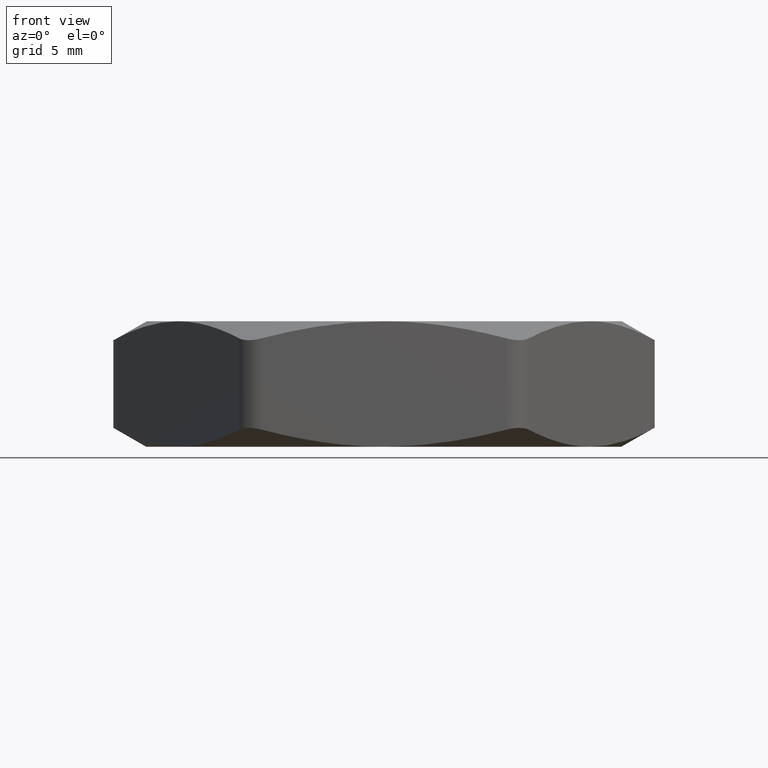
[diagram: clean part render]
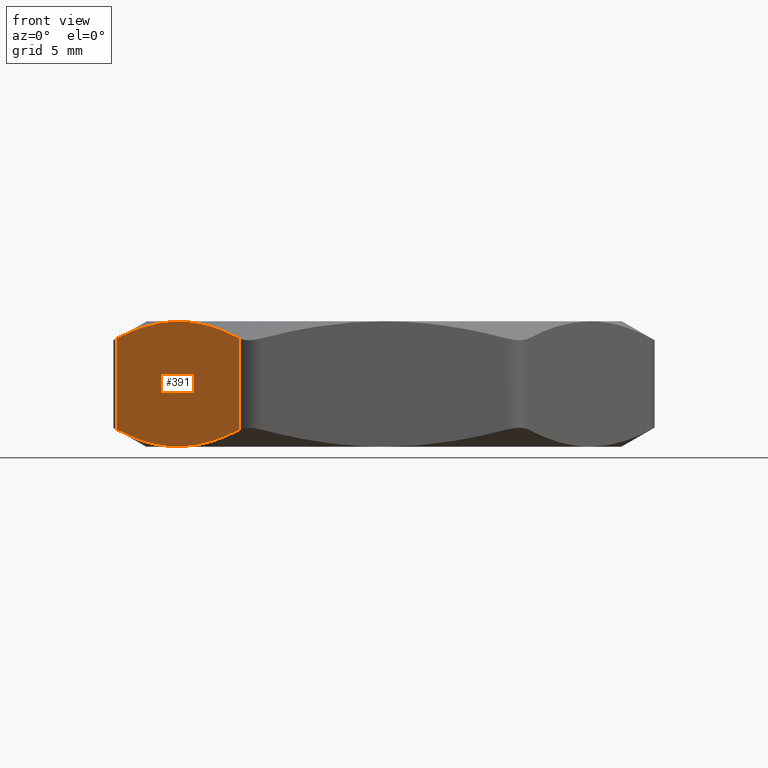
[diagram: same view with one face highlighted and labeled with its STEP entity id]
A machine part, front view. The second image highlights one B-rep face of the part: STEP entity #391.
In plain terms, the highlighted planar face has unit normal (0.866, 0.5, 0).
Its self-contained STEP definition (entity closure, byte-faithful):
#103 = EDGE_CURVE ( 'NONE', #123, #129, #1183, .T. ) ;
#123 = VERTEX_POINT ( 'NONE', #1197 ) ;
#129 = VERTEX_POINT ( 'NONE', #1184 ) ;
#382 = EDGE_CURVE ( 'NONE', #439, #410, #1484, .T. ) ;
#387 = EDGE_LOOP ( 'NONE', ( #416, #450, #392, #390, #393, #536 ) ) ;
#388 = EDGE_CURVE ( 'NONE', #389, #503, #1489, .T. ) ;
#389 = VERTEX_POINT ( 'NONE', #1488 ) ;
#390 = ORIENTED_EDGE ( 'NONE', *, *, #409, .F. ) ;
#391 = ADVANCED_FACE ( 'NONE', ( #1487 ), #1468, .F. ) ;
#392 = ORIENTED_EDGE ( 'NONE', *, *, #382, .F. ) ;
#393 = ORIENTED_EDGE ( 'NONE', *, *, #103, .T. ) ;
#409 = EDGE_CURVE ( 'NONE', #123, #439, #1517, .T. ) ;
#410 = VERTEX_POINT ( 'NONE', #1516 ) ;
#416 = ORIENTED_EDGE ( 'NONE', *, *, #388, .F. ) ;
#439 = VERTEX_POINT ( 'NONE', #1564 ) ;
#450 = ORIENTED_EDGE ( 'NONE', *, *, #560, .T. ) ;
#503 = VERTEX_POINT ( 'NONE', #1767 ) ;
#536 = ORIENTED_EDGE ( 'NONE', *, *, #537, .F. ) ;
#537 = EDGE_CURVE ( 'NONE', #503, #129, #1667, .T. ) ;
#560 = EDGE_CURVE ( 'NONE', #389, #410, #2002, .T. ) ;
#1174 = DIRECTION ( 'NONE',  ( 0.0000000000000000000, 0.0000000000000000000, -1.000000000000000000 ) ) ;
#1175 = VECTOR ( 'NONE', #1174, 39.37007874015748100 ) ;
#1182 = CARTESIAN_POINT ( 'NONE',  ( -0.5109549882328187100, -0.02499999999999983500, 0.2399999999999999900 ) ) ;
#1183 = LINE ( 'NONE', #1182, #1175 ) ;
#1184 = CARTESIAN_POINT ( 'NONE',  ( -0.5109549882328187100, -0.02499999999999989000, 0.03265852378576744600 ) ) ;
#1197 = CARTESIAN_POINT ( 'NONE',  ( -0.5109549882328113800, -0.02500000000001266100, 0.2073414762142365400 ) ) ;
#1435 = DIRECTION ( 'NONE',  ( -0.4999999999999996100, 0.8660254037844388200, 0.0000000000000000000 ) ) ;
#1453 = CARTESIAN_POINT ( 'NONE',  ( -0.3544981436934779900, -0.2959912039340434300, 0.2362998002525596200 ) ) ;
#1454 = CARTESIAN_POINT ( 'NONE',  ( -0.3741964225388601500, -0.2618727841521824600, 0.2392436842612520300 ) ) ;
#1455 = CARTESIAN_POINT ( 'NONE',  ( -0.3841432737497994000, -0.2446443324795075100, 0.2400000000000003500 ) ) ;
#1456 = CARTESIAN_POINT ( 'NONE',  ( -0.3940415587219195400, -0.2274999999999997600, 0.2399999999999999900 ) ) ;
#1465 = DIRECTION ( 'NONE',  ( 0.8660254037844388200, 0.4999999999999996100, 0.0000000000000000000 ) ) ;
#1466 = CARTESIAN_POINT ( 'NONE',  ( -0.5253887449625593800, 2.086280119793686300E-016, 0.2399999999999999900 ) ) ;
#1467 = AXIS2_PLACEMENT_3D ( 'NONE', #1466, #1465, #1435 ) ;
#1468 = PLANE ( 'NONE',  #1467 ) ;
#1470 = CARTESIAN_POINT ( 'NONE',  ( -0.3940415587219196500, -0.2274999999999998100, 0.0000000000000000000 ) ) ;
#1471 = CARTESIAN_POINT ( 'NONE',  ( -0.3741650461296590600, -0.2619271296870779900, -3.058655981187576800E-016 ) ) ;
#1472 = CARTESIAN_POINT ( 'NONE',  ( -0.3545074000024688900, -0.2959751715365804800, 0.003047286557916121000 ) ) ;
#1473 = CARTESIAN_POINT ( 'NONE',  ( -0.3155652014642630300, -0.3634250379631875400, 0.01433645842496861200 ) ) ;
#1474 = CARTESIAN_POINT ( 'NONE',  ( -0.2962786875227135800, -0.3968302600108370400, 0.02255103326593309000 ) ) ;
#1477 = CARTESIAN_POINT ( 'NONE',  ( -0.2771281292110438500, -0.4299999999999594100, 0.2073414762142448400 ) ) ;
#1478 = CARTESIAN_POINT ( 'NONE',  ( -0.2962350177360412700, -0.3969058983001091400, 0.2174259182177965000 ) ) ;
#1479 = CARTESIAN_POINT ( 'NONE',  ( -0.3154969853735114500, -0.3635431916982633200, 0.2256379058401488900 ) ) ;
#1480 = CARTESIAN_POINT ( 'NONE',  ( -0.3447080571647794200, -0.3129481312122451800, 0.2341148424957023600 ) ) ;
#1484 = B_SPLINE_CURVE_WITH_KNOTS ( 'NONE', 3,
 ( #1456, #1455, #1454, #1453, #1480, #1479, #1478, #1477 ),
 .UNSPECIFIED., .F., .F.,
 ( 4, 2, 2, 4 ),
 ( 0.006751651584641397800, 0.008244823521400589500, 0.009737995458159780200, 0.01272433933167816200 ),
 .UNSPECIFIED. ) ;
#1486 = CARTESIAN_POINT ( 'NONE',  ( -0.2771281292110130400, -0.4300000000000128200, 0.03265852378577136600 ) ) ;
#1487 = FACE_OUTER_BOUND ( 'NONE', #387, .T. ) ;
#1488 = CARTESIAN_POINT ( 'NONE',  ( -0.2771281292110130400, -0.4300000000000128200, 0.03265852378577136600 ) ) ;
#1489 = B_SPLINE_CURVE_WITH_KNOTS ( 'NONE', 3,
 ( #1486, #1474, #1473, #1472, #1471, #1470 ),
 .UNSPECIFIED., .F., .F.,
 ( 4, 2, 4 ),
 ( 0.0007548448879259750000, 0.003753248236283686500, 0.006751651584641400400 ),
 .UNSPECIFIED. ) ;
#1516 = CARTESIAN_POINT ( 'NONE',  ( -0.2771281292110438500, -0.4299999999999594100, 0.2073414762142448400 ) ) ;
#1517 = B_SPLINE_CURVE_WITH_KNOTS ( 'NONE', 3,
 ( #1622, #1621, #1620, #1619, #1618, #1617 ),
 .UNSPECIFIED., .F., .F.,
 ( 4, 2, 4 ),
 ( 0.0007548448879267514000, 0.003753248236284073700, 0.006751651584641397800 ),
 .UNSPECIFIED. ) ;
#1564 = CARTESIAN_POINT ( 'NONE',  ( -0.3940415587219195400, -0.2274999999999997600, 0.2399999999999999900 ) ) ;
#1617 = CARTESIAN_POINT ( 'NONE',  ( -0.3940415587219195400, -0.2274999999999997600, 0.2399999999999999900 ) ) ;
#1618 = CARTESIAN_POINT ( 'NONE',  ( -0.4139180713141776300, -0.1930728703129261100, 0.2400000000000003000 ) ) ;
#1619 = CARTESIAN_POINT ( 'NONE',  ( -0.4335757174413649200, -0.1590248284634279100, 0.2369527134420846000 ) ) ;
#1620 = CARTESIAN_POINT ( 'NONE',  ( -0.4725179159795662200, -0.09157496203682950800, 0.2256635415750351000 ) ) ;
#1621 = CARTESIAN_POINT ( 'NONE',  ( -0.4918044299211131700, -0.05816973998918427400, 0.2174489667340724600 ) ) ;
#1622 = CARTESIAN_POINT ( 'NONE',  ( -0.5109549882328113800, -0.02500000000001266100, 0.2073414762142365400 ) ) ;
#1659 = CARTESIAN_POINT ( 'NONE',  ( -0.5109549882328187100, -0.02499999999999989000, 0.03265852378576744600 ) ) ;
#1660 = CARTESIAN_POINT ( 'NONE',  ( -0.4918480997078174500, -0.05809410169985667500, 0.02257408178221225600 ) ) ;
#1661 = CARTESIAN_POINT ( 'NONE',  ( -0.4725861320703436100, -0.09145680830170913000, 0.01436209415985673800 ) ) ;
#1662 = CARTESIAN_POINT ( 'NONE',  ( -0.4433750602790699200, -0.1420518687877372900, 0.005885157504299990900 ) ) ;
#1663 = CARTESIAN_POINT ( 'NONE',  ( -0.4335849737503692000, -0.1590087960659424000, 0.003700199747441852300 ) ) ;
#1664 = CARTESIAN_POINT ( 'NONE',  ( -0.4138866949049831400, -0.1931272158478103400, 0.0007563157387482709200 ) ) ;
#1665 = CARTESIAN_POINT ( 'NONE',  ( -0.4039398436940418400, -0.2103556675204885400, -3.107093593624067100E-016 ) ) ;
#1666 = CARTESIAN_POINT ( 'NONE',  ( -0.3940415587219196500, -0.2274999999999998100, 0.0000000000000000000 ) ) ;
#1667 = B_SPLINE_CURVE_WITH_KNOTS ( 'NONE', 3,
 ( #1666, #1665, #1664, #1663, #1662, #1661, #1660, #1659 ),
 .UNSPECIFIED., .F., .F.,
 ( 4, 2, 2, 4 ),
 ( 0.006751651584641400400, 0.008244823521400896500, 0.009737995458160390900, 0.01272433933167938000 ),
 .UNSPECIFIED. ) ;
#1767 = CARTESIAN_POINT ( 'NONE',  ( -0.3940415587219196500, -0.2274999999999998100, 0.0000000000000000000 ) ) ;
#1999 = DIRECTION ( 'NONE',  ( 0.0000000000000000000, 0.0000000000000000000, 1.000000000000000000 ) ) ;
#2000 = VECTOR ( 'NONE', #1999, 39.37007874015748100 ) ;
#2001 = CARTESIAN_POINT ( 'NONE',  ( -0.2771281292110204800, -0.4299999999999999400, 0.2399999999999999900 ) ) ;
#2002 = LINE ( 'NONE', #2001, #2000 ) ;